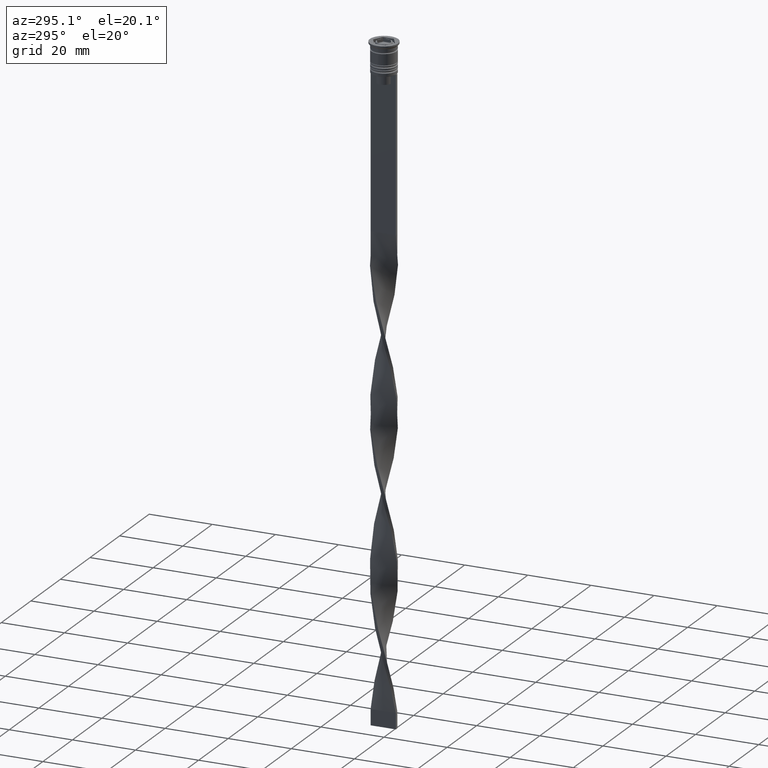
[diagram: clean part render]
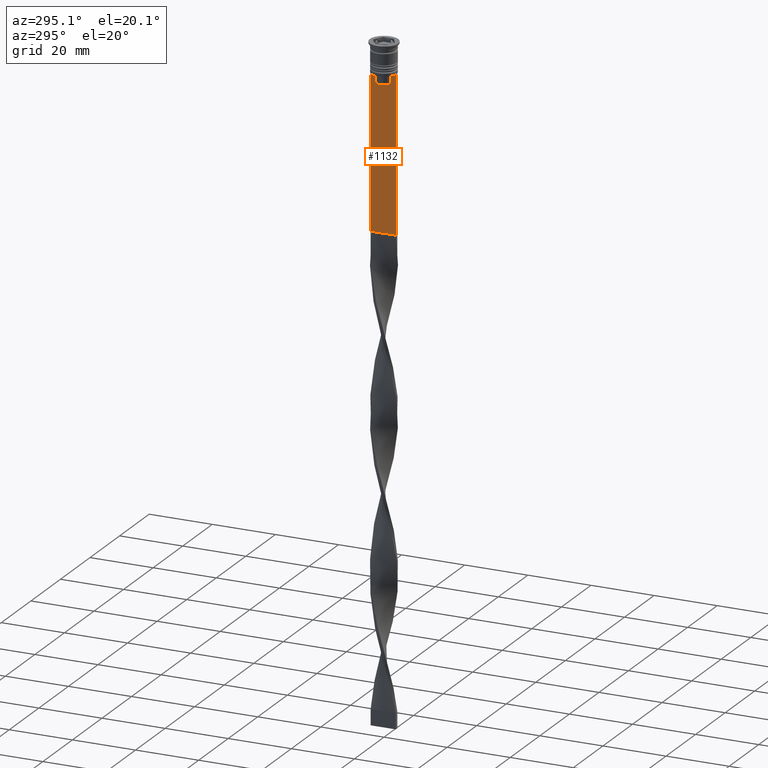
[diagram: same view with one face highlighted and labeled with its STEP entity id]
A machine part, auxiliary view. The second image highlights one B-rep face of the part: STEP entity #1132.
In plain terms, the highlighted planar face has unit normal (-1, 0, 0).
Its self-contained STEP definition (entity closure, byte-faithful):
#28 = DIRECTION ( 'NONE',  ( -0.000000000000000000, -0.000000000000000000, 1.000000000000000000 ) ) ;
#91 = CARTESIAN_POINT ( 'NONE',  ( -0.5000000000000000000, -4.000000000000000000, -58.50000000000000000 ) ) ;
#92 = VERTEX_POINT ( 'NONE', #2830 ) ;
#128 = ORIENTED_EDGE ( 'NONE', *, *, #1470, .F. ) ;
#146 = VECTOR ( 'NONE', #2207, 1000.000000000000000 ) ;
#195 = B_SPLINE_CURVE_WITH_KNOTS ( 'NONE', 3,
 ( #2622, #3845, #1994, #1151 ),
 .UNSPECIFIED., .F., .F.,
 ( 4, 4 ),
 ( 0.004956812174141195064, 0.005670477137898153989 ),
 .UNSPECIFIED. ) ;
#262 = DIRECTION ( 'NONE',  ( 0.000000000000000000, 0.000000000000000000, -1.000000000000000000 ) ) ;
#321 = CARTESIAN_POINT ( 'NONE',  ( -0.5000000000000000000, 2.347338918861097135, 0.000000000000000000 ) ) ;
#325 = DIRECTION ( 'NONE',  ( 0.000000000000000000, -1.000000000000000000, 0.000000000000000000 ) ) ;
#340 = AXIS2_PLACEMENT_3D ( 'NONE', #2391, #1531, #889 ) ;
#403 = LINE ( 'NONE', #91, #3559 ) ;
#426 = CARTESIAN_POINT ( 'NONE',  ( -0.5000000000000000000, -4.000000000000000000, -58.50000000000000000 ) ) ;
#552 = EDGE_CURVE ( 'NONE', #2460, #3397, #2108, .T. ) ;
#563 = LINE ( 'NONE', #2656, #2291 ) ;
#616 = CARTESIAN_POINT ( 'NONE',  ( -0.5000000000000000000, 3.867815921162741422, -9.500000000000000000 ) ) ;
#629 = VERTEX_POINT ( 'NONE', #1247 ) ;
#792 = VERTEX_POINT ( 'NONE', #3520 ) ;
#800 = EDGE_CURVE ( 'NONE', #2165, #629, #1075, .T. ) ;
#808 = DIRECTION ( 'NONE',  ( 0.000000000000000000, -1.000000000000000000, 0.000000000000000000 ) ) ;
#836 = CARTESIAN_POINT ( 'NONE',  ( -0.5000000000000000000, -2.687095498514037839, -9.666937905752043037 ) ) ;
#881 = EDGE_CURVE ( 'NONE', #3858, #2592, #3034, .T. ) ;
#888 = CARTESIAN_POINT ( 'NONE',  ( -0.5000000000000000000, -4.000000000000000000, -9.500000000000000000 ) ) ;
#889 = DIRECTION ( 'NONE',  ( 0.000000000000000000, 0.000000000000000000, 1.000000000000000000 ) ) ;
#930 = VECTOR ( 'NONE', #3389, 1000.000000000000000 ) ;
#934 = ORIENTED_EDGE ( 'NONE', *, *, #1833, .F. ) ;
#943 = CARTESIAN_POINT ( 'NONE',  ( -0.5000000000000000000, -2.347338918861097135, -12.50000000000000000 ) ) ;
#1014 = LINE ( 'NONE', #3161, #146 ) ;
#1075 = LINE ( 'NONE', #2919, #3881 ) ;
#1095 = B_SPLINE_CURVE_WITH_KNOTS ( 'NONE', 3,
 ( #2908, #1806, #836, #3017 ),
 .UNSPECIFIED., .F., .F.,
 ( 4, 4 ),
 ( 0.01178336557230038641, 0.01249758354768160454 ),
 .UNSPECIFIED. ) ;
#1132 = ADVANCED_FACE ( 'NONE', ( #2998 ), #3018, .T. ) ;
#1151 = CARTESIAN_POINT ( 'NONE',  ( -0.5000000000000000000, 2.347338918861097135, -10.00000000000000000 ) ) ;
#1220 = CARTESIAN_POINT ( 'NONE',  ( -0.5000000000000000000, -4.000000000000000000, -1.437742251701450202 ) ) ;
#1235 = CARTESIAN_POINT ( 'NONE',  ( -0.5000000000000000000, 2.856571371417138572, -9.500000000000000000 ) ) ;
#1247 = CARTESIAN_POINT ( 'NONE',  ( -0.5000000000000000000, -3.867815921162741422, -9.500000000000000000 ) ) ;
#1248 = CARTESIAN_POINT ( 'NONE',  ( -0.5000000000000000000, -2.347338918861097135, 0.000000000000000000 ) ) ;
#1316 = VERTEX_POINT ( 'NONE', #3076 ) ;
#1331 = ORIENTED_EDGE ( 'NONE', *, *, #2593, .F. ) ;
#1366 = CARTESIAN_POINT ( 'NONE',  ( -0.5000000000000000000, -4.000000000000000000, -9.500000000000000000 ) ) ;
#1407 = LINE ( 'NONE', #2877, #3641 ) ;
#1458 = ORIENTED_EDGE ( 'NONE', *, *, #881, .F. ) ;
#1470 = EDGE_CURVE ( 'NONE', #92, #2884, #3892, .T. ) ;
#1526 = DIRECTION ( 'NONE',  ( 0.000000000000000000, 1.000000000000000000, 0.000000000000000000 ) ) ;
#1531 = DIRECTION ( 'NONE',  ( -1.000000000000000000, 0.000000000000000000, 0.000000000000000000 ) ) ;
#1544 = VECTOR ( 'NONE', #262, 1000.000000000000000 ) ;
#1746 = EDGE_LOOP ( 'NONE', ( #2243, #1458, #934, #3685, #3416, #2187, #3526, #2547, #1331, #2220, #2870, #128 ) ) ;
#1806 = CARTESIAN_POINT ( 'NONE',  ( -0.5000000000000000000, -2.517408374291112416, -9.833662228483172285 ) ) ;
#1833 = EDGE_CURVE ( 'NONE', #2683, #3858, #563, .T. ) ;
#1895 = EDGE_CURVE ( 'NONE', #3397, #1316, #403, .T. ) ;
#1906 = EDGE_CURVE ( 'NONE', #2034, #792, #3106, .T. ) ;
#1914 = VECTOR ( 'NONE', #325, 1000.000000000000000 ) ;
#1994 = CARTESIAN_POINT ( 'NONE',  ( -0.5000000000000000000, 2.517407211010871393, -9.833663366238582171 ) ) ;
#2034 = VERTEX_POINT ( 'NONE', #943 ) ;
#2108 = LINE ( 'NONE', #1220, #3428 ) ;
#2165 = VERTEX_POINT ( 'NONE', #2381 ) ;
#2173 = CARTESIAN_POINT ( 'NONE',  ( -0.5000000000000000000, 2.399999999999996803, -12.50000000000000000 ) ) ;
#2187 = ORIENTED_EDGE ( 'NONE', *, *, #552, .F. ) ;
#2194 = CARTESIAN_POINT ( 'NONE',  ( -0.5000000000000000000, 2.347338918861097135, -12.50000000000000000 ) ) ;
#2207 = DIRECTION ( 'NONE',  ( 0.000000000000000000, -1.000000000000000000, 0.000000000000000000 ) ) ;
#2220 = ORIENTED_EDGE ( 'NONE', *, *, #1906, .F. ) ;
#2243 = ORIENTED_EDGE ( 'NONE', *, *, #3042, .F. ) ;
#2291 = VECTOR ( 'NONE', #3886, 1000.000000000000000 ) ;
#2381 = CARTESIAN_POINT ( 'NONE',  ( -0.5000000000000000000, -2.856571371417138572, -9.500000000000000000 ) ) ;
#2391 = CARTESIAN_POINT ( 'NONE',  ( -0.5000000000000000000, -4.000000000000000000, -1.437742251701450202 ) ) ;
#2460 = VERTEX_POINT ( 'NONE', #1366 ) ;
#2518 = EDGE_CURVE ( 'NONE', #629, #2460, #1014, .T. ) ;
#2546 = VECTOR ( 'NONE', #28, 1000.000000000000000 ) ;
#2547 = ORIENTED_EDGE ( 'NONE', *, *, #800, .F. ) ;
#2592 = VERTEX_POINT ( 'NONE', #1235 ) ;
#2593 = EDGE_CURVE ( 'NONE', #792, #2165, #1095, .T. ) ;
#2622 = CARTESIAN_POINT ( 'NONE',  ( -0.5000000000000000000, 2.856571371417138572, -9.500000000000000000 ) ) ;
#2656 = CARTESIAN_POINT ( 'NONE',  ( -0.5000000000000000000, -4.000000000000000000, -9.500000000000000000 ) ) ;
#2683 = VERTEX_POINT ( 'NONE', #2990 ) ;
#2830 = CARTESIAN_POINT ( 'NONE',  ( -0.5000000000000000000, 2.347338918861097135, -10.00000000000000000 ) ) ;
#2870 = ORIENTED_EDGE ( 'NONE', *, *, #3523, .F. ) ;
#2877 = CARTESIAN_POINT ( 'NONE',  ( -0.5000000000000000000, 4.000000000000000000, -1.437742251701450202 ) ) ;
#2884 = VERTEX_POINT ( 'NONE', #2194 ) ;
#2891 = DIRECTION ( 'NONE',  ( 0.000000000000000000, 0.000000000000000000, -1.000000000000000000 ) ) ;
#2908 = CARTESIAN_POINT ( 'NONE',  ( -0.5000000000000000000, -2.347338918861097135, -10.00000000000000000 ) ) ;
#2919 = CARTESIAN_POINT ( 'NONE',  ( -0.5000000000000000000, -4.000000000000000000, -9.500000000000000000 ) ) ;
#2990 = CARTESIAN_POINT ( 'NONE',  ( -0.5000000000000000000, 4.000000000000000000, -9.500000000000000000 ) ) ;
#2998 = FACE_OUTER_BOUND ( 'NONE', #1746, .T. ) ;
#3017 = CARTESIAN_POINT ( 'NONE',  ( -0.5000000000000000000, -2.856571371417138572, -9.500000000000000000 ) ) ;
#3018 = PLANE ( 'NONE',  #340 ) ;
#3034 = LINE ( 'NONE', #888, #1914 ) ;
#3042 = EDGE_CURVE ( 'NONE', #2592, #92, #195, .T. ) ;
#3076 = CARTESIAN_POINT ( 'NONE',  ( -0.5000000000000000000, 4.000000000000000000, -58.50000000000000000 ) ) ;
#3106 = LINE ( 'NONE', #1248, #2546 ) ;
#3161 = CARTESIAN_POINT ( 'NONE',  ( -0.5000000000000000000, -4.000000000000000000, -9.500000000000000000 ) ) ;
#3389 = DIRECTION ( 'NONE',  ( 0.000000000000000000, -1.000000000000000000, 0.000000000000000000 ) ) ;
#3397 = VERTEX_POINT ( 'NONE', #426 ) ;
#3416 = ORIENTED_EDGE ( 'NONE', *, *, #1895, .F. ) ;
#3428 = VECTOR ( 'NONE', #3618, 1000.000000000000000 ) ;
#3520 = CARTESIAN_POINT ( 'NONE',  ( -0.5000000000000000000, -2.347338918861097135, -10.00000000000000000 ) ) ;
#3523 = EDGE_CURVE ( 'NONE', #2884, #2034, #3687, .T. ) ;
#3526 = ORIENTED_EDGE ( 'NONE', *, *, #2518, .F. ) ;
#3559 = VECTOR ( 'NONE', #1526, 1000.000000000000000 ) ;
#3577 = EDGE_CURVE ( 'NONE', #2683, #1316, #1407, .T. ) ;
#3618 = DIRECTION ( 'NONE',  ( 0.000000000000000000, 0.000000000000000000, -1.000000000000000000 ) ) ;
#3641 = VECTOR ( 'NONE', #2891, 1000.000000000000000 ) ;
#3685 = ORIENTED_EDGE ( 'NONE', *, *, #3577, .T. ) ;
#3687 = LINE ( 'NONE', #2173, #930 ) ;
#3845 = CARTESIAN_POINT ( 'NONE',  ( -0.5000000000000000000, 2.687094542495897631, -9.666938847453439010 ) ) ;
#3858 = VERTEX_POINT ( 'NONE', #616 ) ;
#3881 = VECTOR ( 'NONE', #808, 1000.000000000000000 ) ;
#3886 = DIRECTION ( 'NONE',  ( 0.000000000000000000, -1.000000000000000000, 0.000000000000000000 ) ) ;
#3892 = LINE ( 'NONE', #321, #1544 ) ;